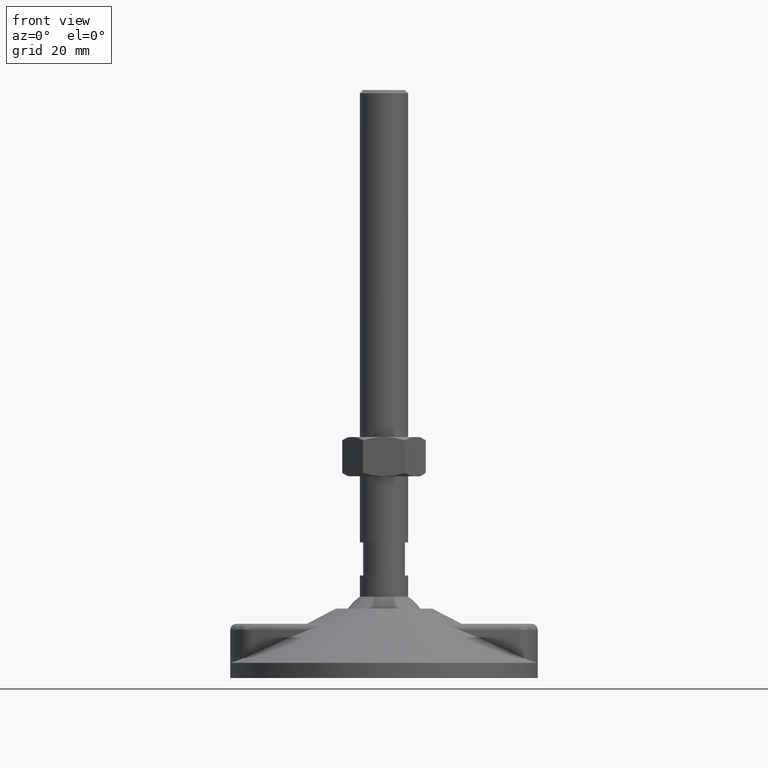
[diagram: clean part render]
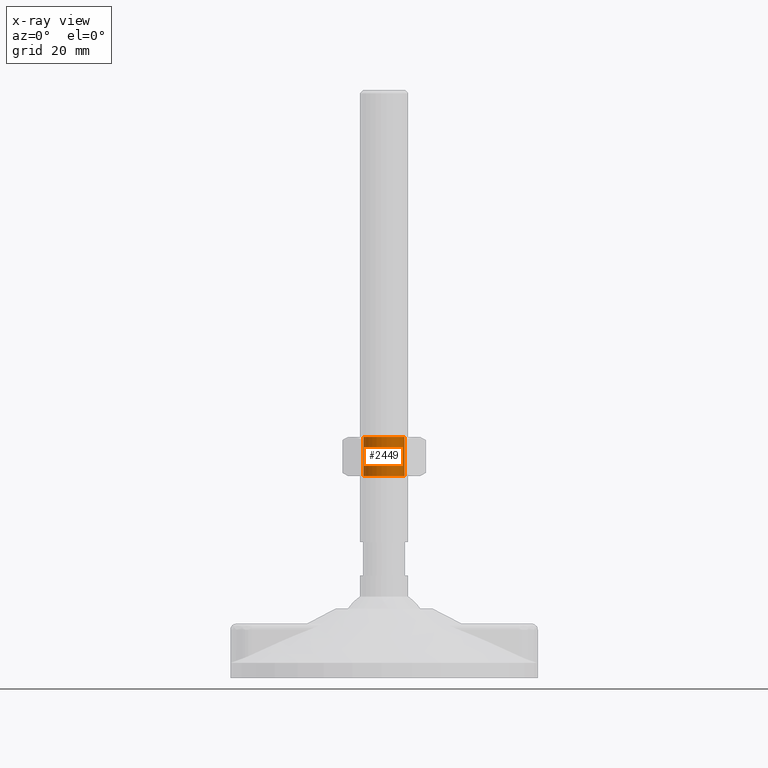
[diagram: x-ray — body ghosted, one internal face saturated and labeled with its STEP entity id]
A machine part, front view, then the same camera in x-ray: the body is ghosted and one INTERNAL B-rep face — a face not visible from any outside direction — is saturated and labeled: STEP entity #2449.
In plain terms, the highlighted cylindrical surface (bore or boss wall) has radius 6.85 mm, axis along (0, 0, -1).
Its self-contained STEP definition (entity closure, byte-faithful):
#1758=CARTESIAN_POINT('',(6.850000000000136,-0.000002062634849,79.917471508069340));
#1759=VERTEX_POINT('',#1758);
#1760=CARTESIAN_POINT('',(-6.849999999999772,-0.000002062634849,79.917471508069369));
#1761=VERTEX_POINT('',#1760);
#1762=CARTESIAN_POINT('',(2.273737E-013,-0.000002062634849,79.917471508069369));
#1763=DIRECTION('',(0.0,0.000000025809555,-1.000000000000000));
#1764=DIRECTION('',(1.0,0.0,0.0));
#1765=AXIS2_PLACEMENT_3D('',#1762,#1763,#1764);
#1766=CIRCLE('',#1765,6.850000000000000);
#1767=EDGE_CURVE('',#1759,#1761,#1766,.T.);
#1769=CARTESIAN_POINT('',(2.273737E-013,-0.000002062634849,79.917471508069369));
#1770=DIRECTION('',(0.0,0.000000025809555,-1.000000000000000));
#1771=DIRECTION('',(1.0,0.0,0.0));
#1772=AXIS2_PLACEMENT_3D('',#1769,#1770,#1771);
#1773=CIRCLE('',#1772,6.850000000000000);
#1774=EDGE_CURVE('',#1761,#1759,#1773,.T.);
#2296=CARTESIAN_POINT('',(-6.849999999999772,-0.000001727110430,66.917471508069355));
#2297=VERTEX_POINT('',#2296);
#2298=CARTESIAN_POINT('',(6.850000000000136,-0.000001727110430,66.917471508069340));
#2299=VERTEX_POINT('',#2298);
#2300=CARTESIAN_POINT('',(2.273737E-013,-0.000001727110430,66.917471508069355));
#2301=DIRECTION('',(0.0,0.000000025809555,-1.000000000000000));
#2302=DIRECTION('',(1.0,0.0,0.0));
#2303=AXIS2_PLACEMENT_3D('',#2300,#2301,#2302);
#2304=CIRCLE('',#2303,6.850000000000000);
#2305=EDGE_CURVE('',#2297,#2299,#2304,.T.);
#2307=CARTESIAN_POINT('',(2.273737E-013,-0.000001727110430,66.917471508069355));
#2308=DIRECTION('',(0.0,0.000000025809555,-1.000000000000000));
#2309=DIRECTION('',(1.0,0.0,0.0));
#2310=AXIS2_PLACEMENT_3D('',#2307,#2308,#2309);
#2311=CIRCLE('',#2310,6.850000000000000);
#2312=EDGE_CURVE('',#2299,#2297,#2311,.T.);
#2431=CARTESIAN_POINT('',(2.273737E-013,-0.000001727110430,66.917471508069340));
#2432=DIRECTION('',(0.0,0.000000025809555,-1.000000000000000));
#2433=DIRECTION('',(1.0,0.0,0.0));
#2434=AXIS2_PLACEMENT_3D('',#2431,#2432,#2433);
#2435=CYLINDRICAL_SURFACE('',#2434,6.850000000000000);
#2436=ORIENTED_EDGE('',*,*,#1774,.F.);
#2437=ORIENTED_EDGE('',*,*,#1767,.F.);
#2438=CARTESIAN_POINT('',(6.850000000000136,-0.000001727110430,66.917471508069340));
#2439=DIRECTION('',(0.0,-0.000000025809555,1.000000000000000));
#2440=VECTOR('',#2439,13.000000000000004);
#2441=LINE('',#2438,#2440);
#2442=EDGE_CURVE('',#2299,#1759,#2441,.T.);
#2443=ORIENTED_EDGE('',*,*,#2442,.F.);
#2444=ORIENTED_EDGE('',*,*,#2312,.T.);
#2445=ORIENTED_EDGE('',*,*,#2305,.T.);
#2446=ORIENTED_EDGE('',*,*,#2442,.T.);
#2447=EDGE_LOOP('',(#2436,#2437,#2443,#2444,#2445,#2446));
#2448=FACE_OUTER_BOUND('',#2447,.T.);
#2449=ADVANCED_FACE('',(#2448),#2435,.F.);